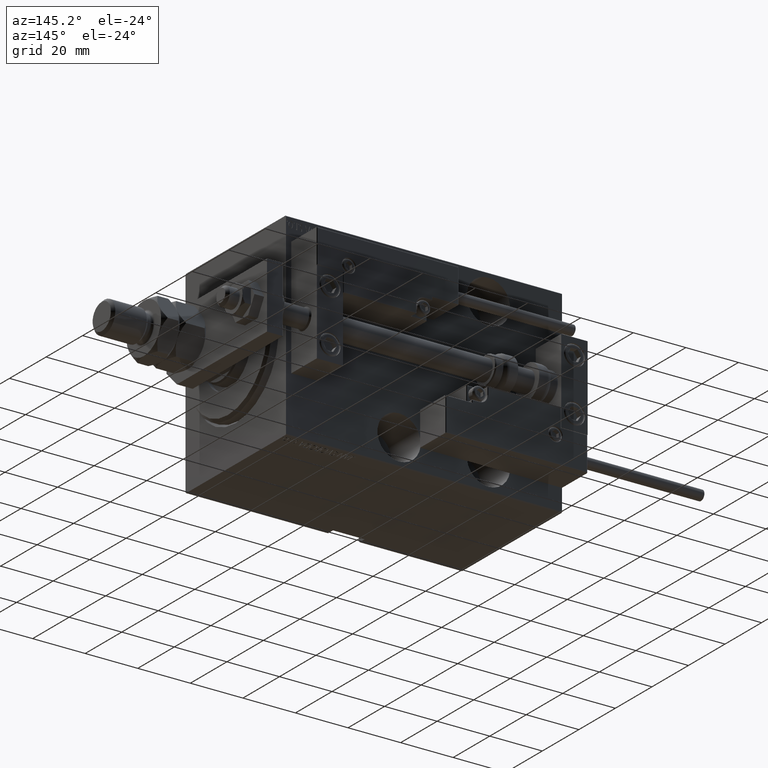
[diagram: clean part render]
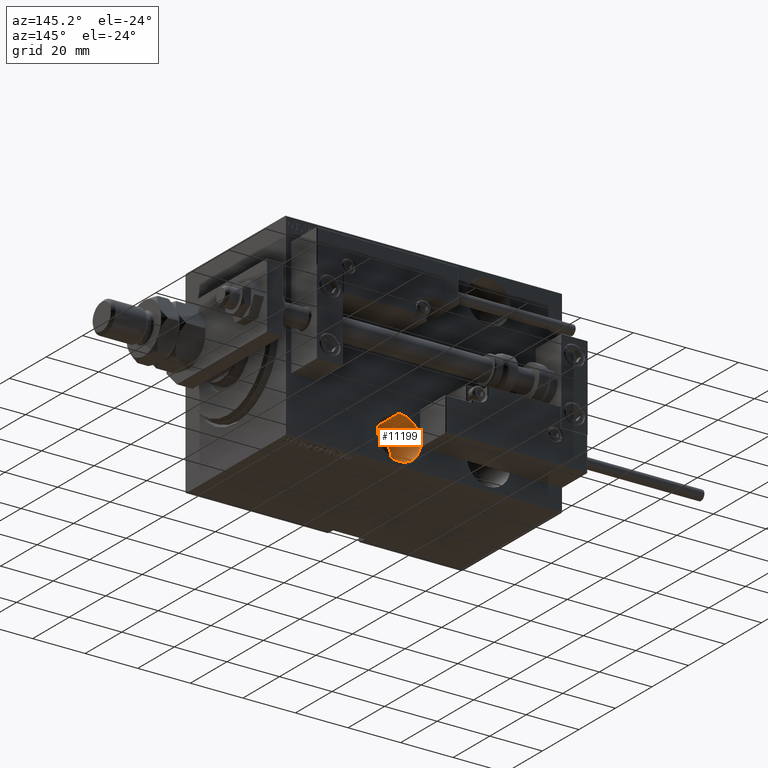
[diagram: same view with one face highlighted and labeled with its STEP entity id]
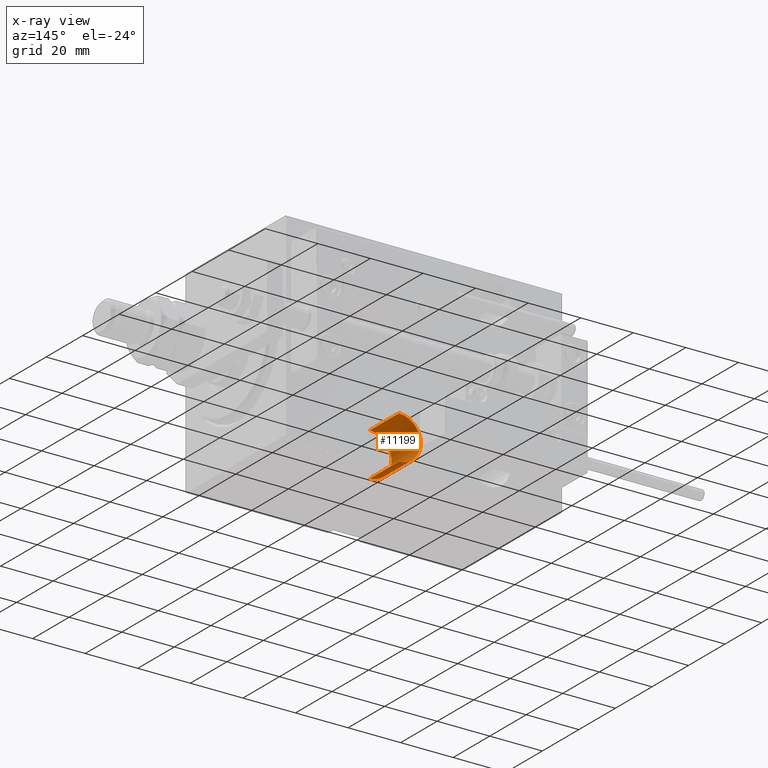
[diagram: x-ray of the same camera — body ghosted, the highlighted face saturated]
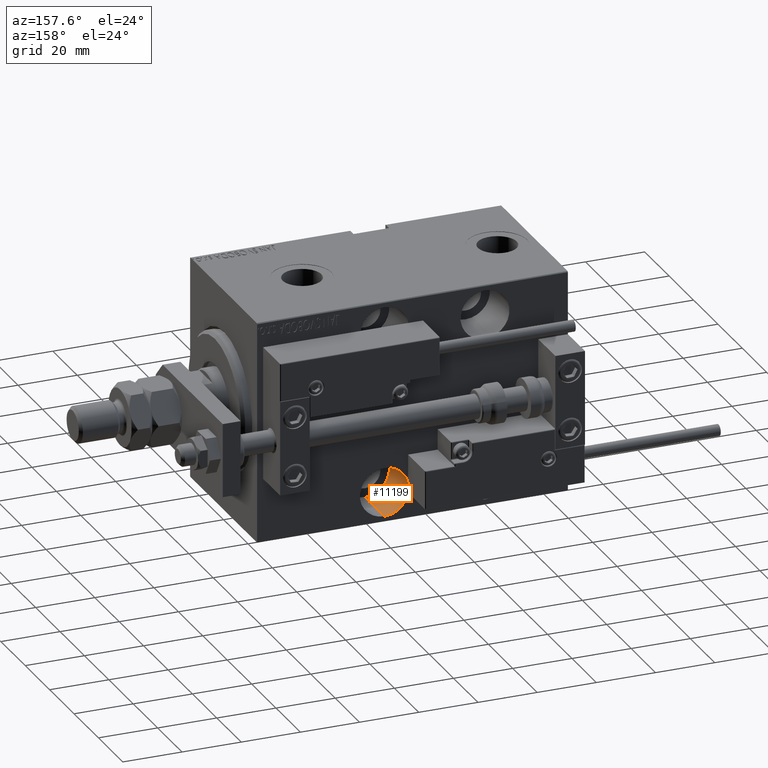
[diagram: same view with one face highlighted and labeled with its STEP entity id]
A machine part, auxiliary view. The second image highlights one B-rep face of the part: STEP entity #11199.
The next image is the same camera in x-ray: the body ghosted, the highlighted face saturated — about 0% of this face is hidden behind the body in this view.
A second angle (auxiliary view) of the same face is appended — the face is thin or edge-on in the first view.
In plain terms, the highlighted cylindrical surface (edge-blend (fillet) strip) has radius 8.25 mm, axis along (0, 1, -0).
Its self-contained STEP definition (entity closure, byte-faithful):
#2397 = CARTESIAN_POINT ( 'NONE',  ( 43.00000000000000000, -11.50000000000000000, -27.49999999999998579 ) ) ;
#2557 = DIRECTION ( 'NONE',  ( -0.000000000000000000, -1.000000000000000000, -0.000000000000000000 ) ) ;
#3444 = CARTESIAN_POINT ( 'NONE',  ( 43.00000000000000000, -11.50000000000000000, -35.74999999999998579 ) ) ;
#5274 = ORIENTED_EDGE ( 'NONE', *, *, #45576, .T. ) ;
#5525 = DIRECTION ( 'NONE',  ( 0.000000000000000000, 0.000000000000000000, -1.000000000000000000 ) ) ;
#9594 = EDGE_CURVE ( 'NONE', #13164, #45402, #11539, .T. ) ;
#9599 = AXIS2_PLACEMENT_3D ( 'NONE', #2397, #18343, #5525 ) ;
#9623 = ORIENTED_EDGE ( 'NONE', *, *, #12988, .F. ) ;
#10181 = VERTEX_POINT ( 'NONE', #14032 ) ;
#10666 = ORIENTED_EDGE ( 'NONE', *, *, #36254, .T. ) ;
#11199 = ADVANCED_FACE ( 'NONE', ( #38365 ), #35208, .F. ) ;
#11539 = LINE ( 'NONE', #27465, #33425 ) ;
#12988 = EDGE_CURVE ( 'NONE', #24040, #13164, #32123, .T. ) ;
#13164 = VERTEX_POINT ( 'NONE', #28987 ) ;
#14032 = CARTESIAN_POINT ( 'NONE',  ( 43.00000000000000000, -27.50000000000000000, -35.74999999999998579 ) ) ;
#15698 = DIRECTION ( 'NONE',  ( 0.000000000000000000, 0.000000000000000000, -1.000000000000000000 ) ) ;
#18343 = DIRECTION ( 'NONE',  ( 0.000000000000000000, -1.000000000000000000, 0.000000000000000000 ) ) ;
#20148 = CARTESIAN_POINT ( 'NONE',  ( 43.00000000000000000, -27.50000000000000000, -27.49999999999998579 ) ) ;
#20441 = DIRECTION ( 'NONE',  ( -0.000000000000000000, -1.000000000000000000, -0.000000000000000000 ) ) ;
#21093 = EDGE_LOOP ( 'NONE', ( #37997, #9623, #10666, #5274 ) ) ;
#22418 = CARTESIAN_POINT ( 'NONE',  ( 43.00000000000000000, -11.50000000000000000, -27.49999999999998579 ) ) ;
#23236 = AXIS2_PLACEMENT_3D ( 'NONE', #20148, #51531, #15698 ) ;
#24040 = VERTEX_POINT ( 'NONE', #3444 ) ;
#24622 = CARTESIAN_POINT ( 'NONE',  ( 43.00000000000000000, -11.50000000000000000, -35.74999999999998579 ) ) ;
#25129 = LINE ( 'NONE', #24622, #50417 ) ;
#27091 = DIRECTION ( 'NONE',  ( 0.000000000000000000, 0.000000000000000000, -1.000000000000000000 ) ) ;
#27205 = DIRECTION ( 'NONE',  ( -0.000000000000000000, -1.000000000000000000, -0.000000000000000000 ) ) ;
#27465 = CARTESIAN_POINT ( 'NONE',  ( 43.00000000000000000, -11.50000000000000000, -19.24999999999998934 ) ) ;
#28987 = CARTESIAN_POINT ( 'NONE',  ( 43.00000000000000000, -11.50000000000000000, -19.24999999999998934 ) ) ;
#32123 = CIRCLE ( 'NONE', #9599, 8.249999999999996447 ) ;
#33425 = VECTOR ( 'NONE', #27205, 1000.000000000000000 ) ;
#35208 = CYLINDRICAL_SURFACE ( 'NONE', #36279, 8.249999999999996447 ) ;
#36254 = EDGE_CURVE ( 'NONE', #24040, #10181, #25129, .T. ) ;
#36279 = AXIS2_PLACEMENT_3D ( 'NONE', #22418, #2557, #27091 ) ;
#37997 = ORIENTED_EDGE ( 'NONE', *, *, #9594, .F. ) ;
#38365 = FACE_OUTER_BOUND ( 'NONE', #21093, .T. ) ;
#39552 = CARTESIAN_POINT ( 'NONE',  ( 43.00000000000000000, -27.50000000000000000, -19.24999999999998934 ) ) ;
#44931 = CIRCLE ( 'NONE', #23236, 8.249999999999996447 ) ;
#45402 = VERTEX_POINT ( 'NONE', #39552 ) ;
#45576 = EDGE_CURVE ( 'NONE', #10181, #45402, #44931, .T. ) ;
#50417 = VECTOR ( 'NONE', #20441, 1000.000000000000000 ) ;
#51531 = DIRECTION ( 'NONE',  ( 0.000000000000000000, -1.000000000000000000, 0.000000000000000000 ) ) ;